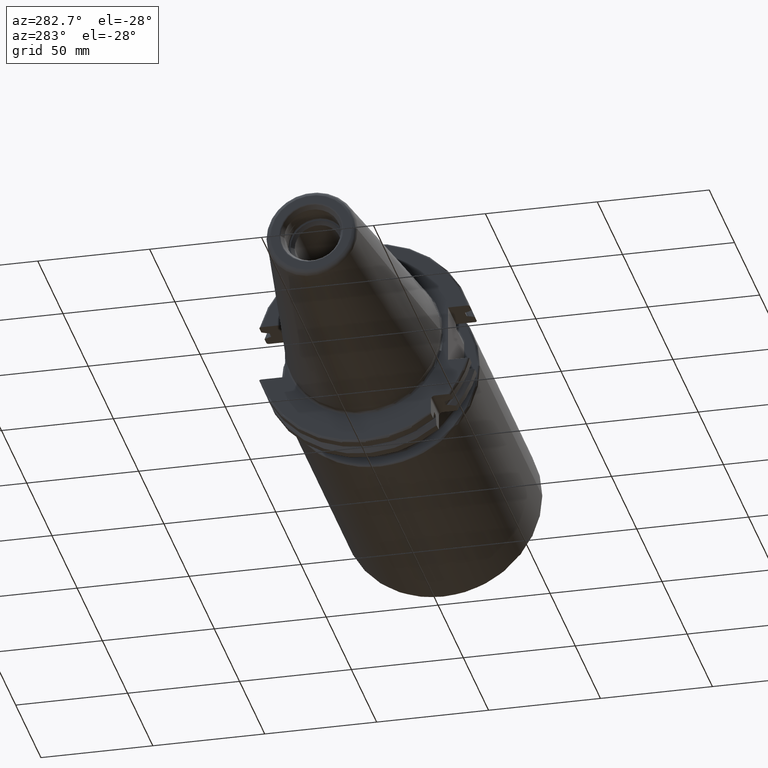
[diagram: clean part render]
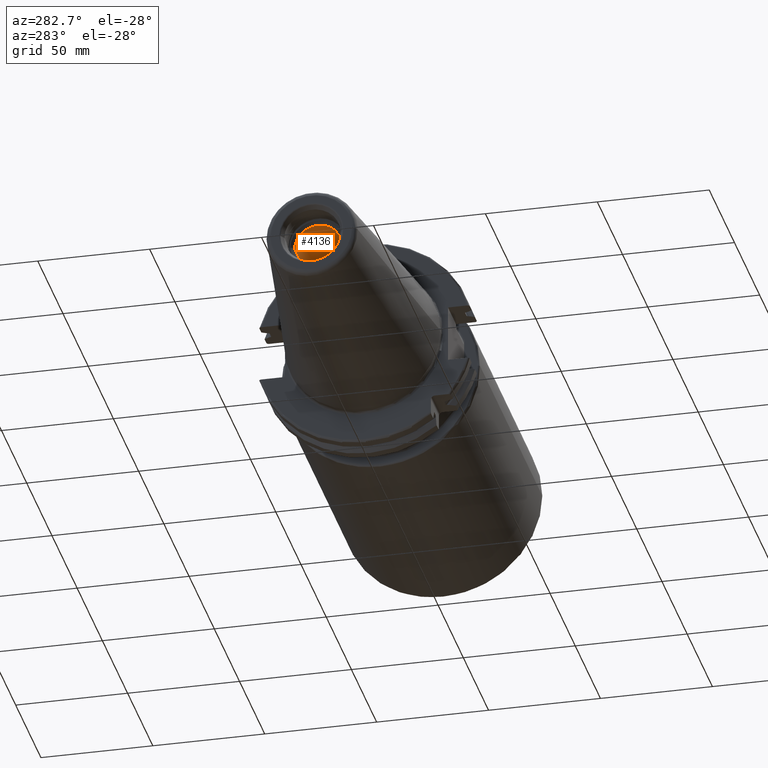
[diagram: same view with one face highlighted and labeled with its STEP entity id]
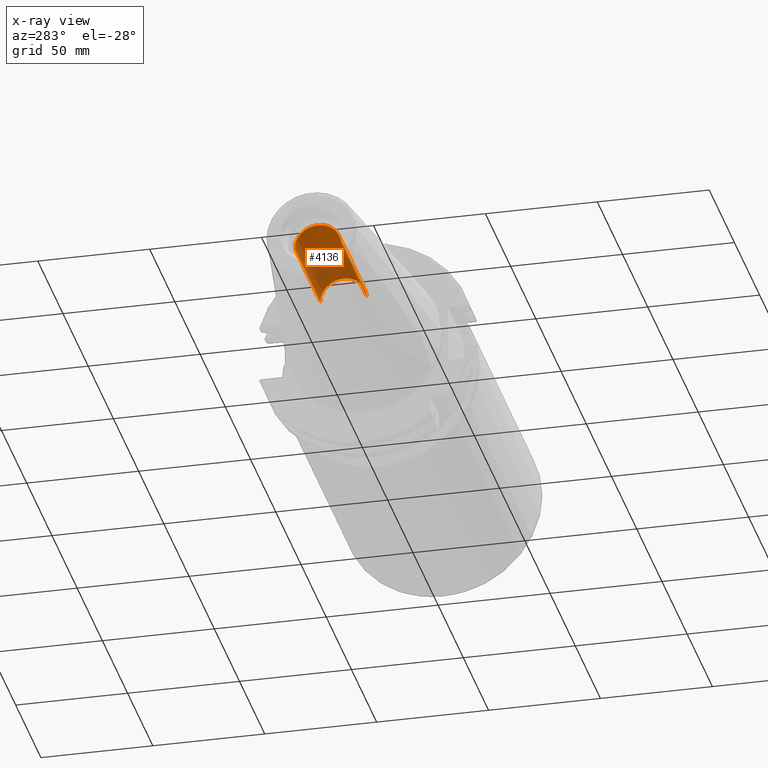
[diagram: x-ray of the same camera — body ghosted, the highlighted face saturated]
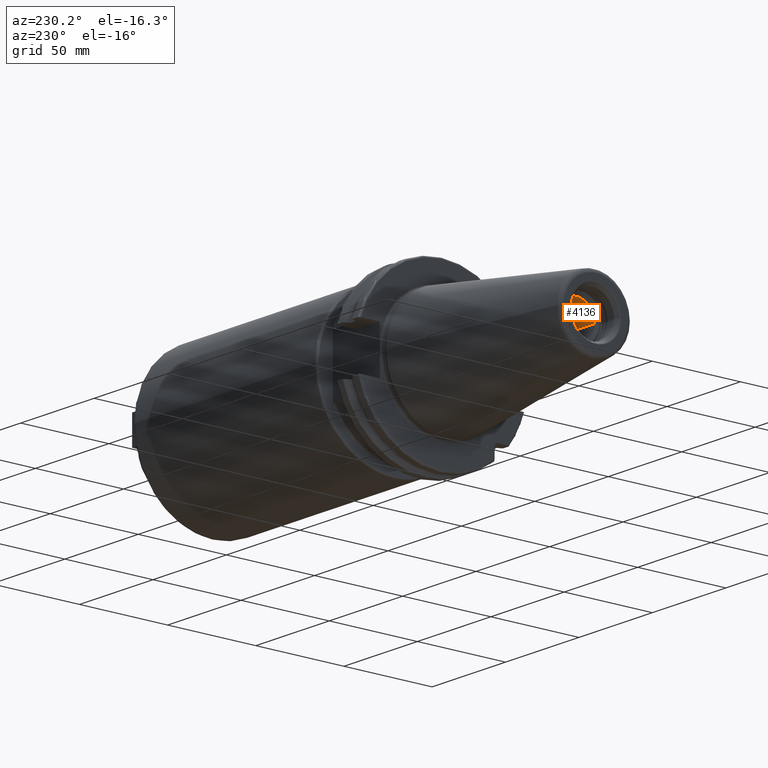
[diagram: same view with one face highlighted and labeled with its STEP entity id]
A machine part, auxiliary view. The second image highlights one B-rep face of the part: STEP entity #4136.
The next image is the same camera in x-ray: the body ghosted, the highlighted face saturated — about 51% of this face is hidden behind the body in this view.
A second angle (auxiliary view) of the same face is appended — the face is thin or edge-on in the first view.
In plain terms, the highlighted cylindrical surface (edge-blend (fillet) strip) has radius 10.375 mm, axis along (1, 0, 0).
Its self-contained STEP definition (entity closure, byte-faithful):
#1719=CARTESIAN_POINT('',(-8.835E1,0.E0,0.E0));
#1720=DIRECTION('',(1.E0,0.E0,0.E0));
#1721=DIRECTION('',(0.E0,1.E0,0.E0));
#1722=AXIS2_PLACEMENT_3D('',#1719,#1720,#1721);
#1737=DIRECTION('',(-1.E0,0.E0,0.E0));
#1738=VECTOR('',#1737,5.075E1);
#1739=CARTESIAN_POINT('',(-3.76E1,1.0375E1,0.E0));
#1740=LINE('',#1739,#1738);
#1746=DIRECTION('',(-1.E0,0.E0,0.E0));
#1747=VECTOR('',#1746,5.075E1);
#1748=CARTESIAN_POINT('',(-3.76E1,-1.0375E1,0.E0));
#1749=LINE('',#1748,#1747);
#1750=CARTESIAN_POINT('',(-3.76E1,0.E0,0.E0));
#1751=DIRECTION('',(1.E0,0.E0,0.E0));
#1752=DIRECTION('',(0.E0,1.E0,0.E0));
#1753=AXIS2_PLACEMENT_3D('',#1750,#1751,#1752);
#1782=CARTESIAN_POINT('',(-3.76E1,1.0375E1,0.E0));
#1784=VERTEX_POINT('',#1782);
#1785=CARTESIAN_POINT('',(-8.835E1,1.0375E1,0.E0));
#1786=VERTEX_POINT('',#1785);
#1805=CARTESIAN_POINT('',(-3.76E1,-1.0375E1,0.E0));
#1806=VERTEX_POINT('',#1805);
#1807=CARTESIAN_POINT('',(-8.835E1,-1.0375E1,0.E0));
#1808=VERTEX_POINT('',#1807);
#4124=CARTESIAN_POINT('',(-1.051116964461E2,0.E0,0.E0));
#4125=DIRECTION('',(1.E0,0.E0,0.E0));
#4126=DIRECTION('',(0.E0,-1.E0,0.E0));
#4127=AXIS2_PLACEMENT_3D('',#4124,#4125,#4126);
#4128=CYLINDRICAL_SURFACE('',#4127,1.0375E1);
#4129=ORIENTED_EDGE('',*,*,#4114,.T.);
#4130=ORIENTED_EDGE('',*,*,#4091,.T.);
#4131=ORIENTED_EDGE('',*,*,#4118,.F.);
#4133=ORIENTED_EDGE('',*,*,#4132,.F.);
#4134=EDGE_LOOP('',(#4129,#4130,#4131,#4133));
#4135=FACE_OUTER_BOUND('',#4134,.F.);
#4136=ADVANCED_FACE('',(#4135),#4128,.F.);
#1723=CIRCLE('',#1722,1.0375E1);
#1754=CIRCLE('',#1753,1.0375E1);
#4091=EDGE_CURVE('',#1786,#1808,#1723,.T.);
#4114=EDGE_CURVE('',#1784,#1786,#1740,.T.);
#4118=EDGE_CURVE('',#1806,#1808,#1749,.T.);
#4132=EDGE_CURVE('',#1784,#1806,#1754,.T.);